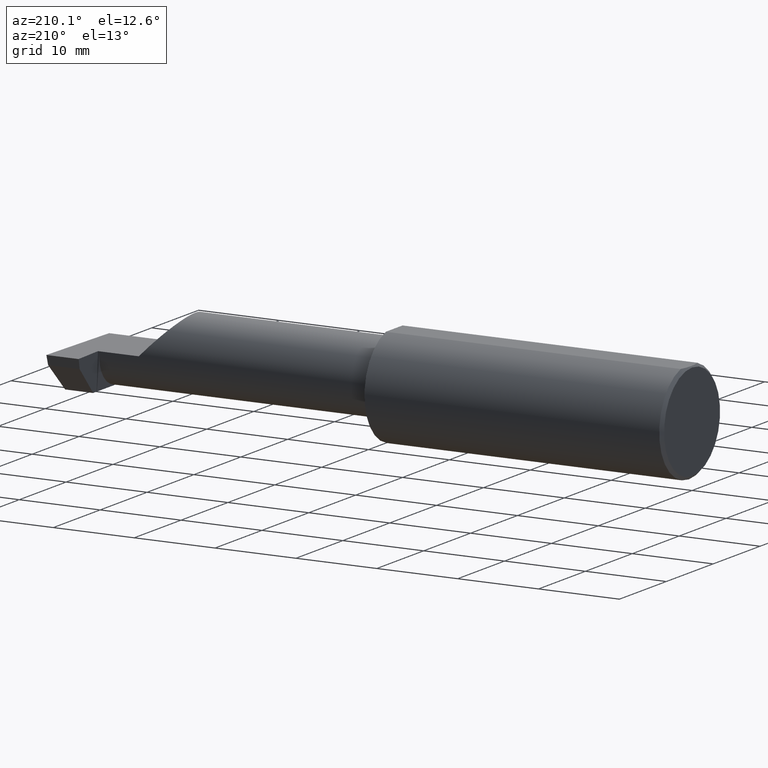
[diagram: clean part render]
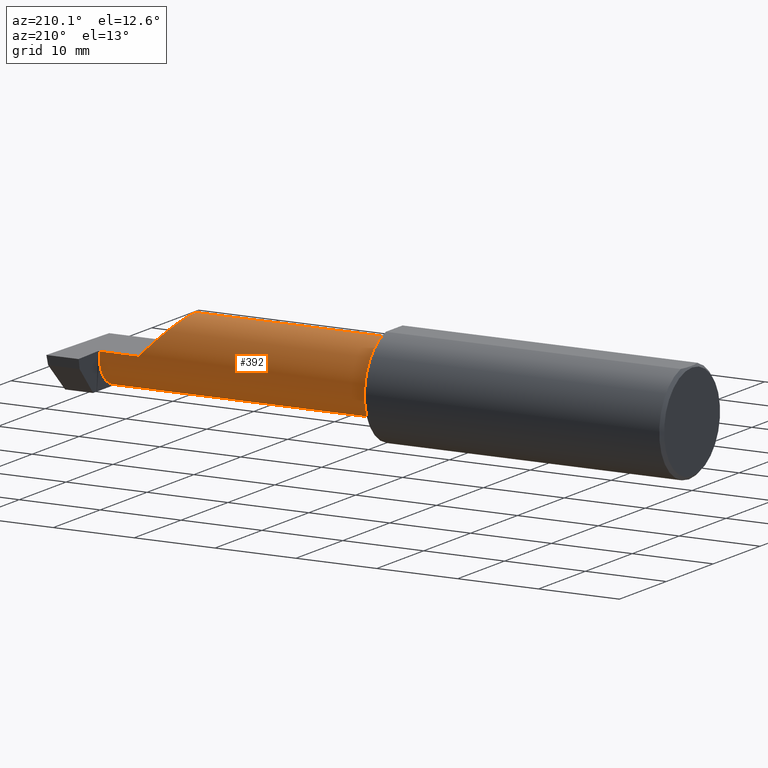
[diagram: same view with one face highlighted and labeled with its STEP entity id]
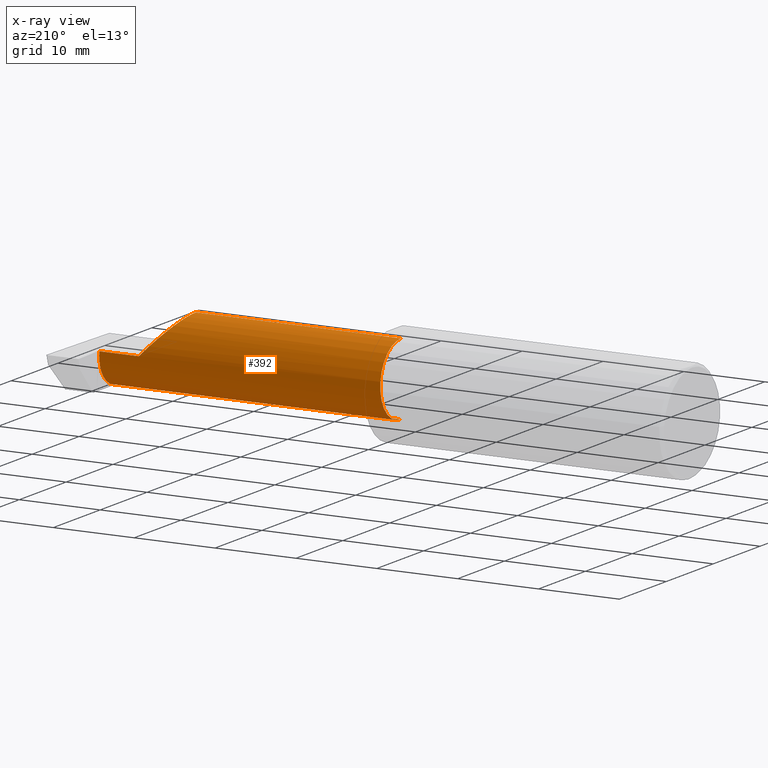
[diagram: x-ray of the same camera — body ghosted, the highlighted face saturated]
A machine part, auxiliary view. The second image highlights one B-rep face of the part: STEP entity #392.
The next image is the same camera in x-ray: the body ghosted, the highlighted face saturated — about 0% of this face is hidden behind the body in this view.
In plain terms, the highlighted cylindrical surface (partial cylindrical patch) has radius 4.445 mm, axis along (-1, -0, -0).
Its self-contained STEP definition (entity closure, byte-faithful):
#12 = CARTESIAN_POINT ( 'NONE',  ( 2.845037492458067696, 0.06794054266098431549, -0.04620338416404774079 ) ) ;
#17 = ORIENTED_EDGE ( 'NONE', *, *, #698, .F. ) ;
#22 = CARTESIAN_POINT ( 'NONE',  ( 2.854036419112083944, -0.01887343476265484349, -0.1749999999999999889 ) ) ;
#32 = ORIENTED_EDGE ( 'NONE', *, *, #170, .T. ) ;
#44 = ORIENTED_EDGE ( 'NONE', *, *, #342, .T. ) ;
#50 = VECTOR ( 'NONE', #495, 39.37007874015748143 ) ;
#57 = DIRECTION ( 'NONE',  ( -1.000000000000000000, -0.000000000000000000, -0.000000000000000000 ) ) ;
#78 = CARTESIAN_POINT ( 'NONE',  ( 2.850564601548837729, 0.04629714416892579537, -0.1252712066320192386 ) ) ;
#89 = DIRECTION ( 'NONE',  ( -1.000000000000000000, -0.000000000000000000, -0.000000000000000000 ) ) ;
#93 = DIRECTION ( 'NONE',  ( -1.000000000000000000, -0.000000000000000000, -0.000000000000000000 ) ) ;
#98 = LINE ( 'NONE', #109, #444 ) ;
#105 = EDGE_CURVE ( 'NONE', #479, #442, #514, .T. ) ;
#109 = CARTESIAN_POINT ( 'NONE',  ( 1.450000000000000178, -0.1008499999999999536, -0.1749999999999999889 ) ) ;
#113 = EDGE_CURVE ( 'NONE', #155, #659, #475, .T. ) ;
#129 = CARTESIAN_POINT ( 'NONE',  ( 2.547487373415292744, 0.07414999999999996594, 0.1025126265847083745 ) ) ;
#140 = ORIENTED_EDGE ( 'NONE', *, *, #270, .F. ) ;
#155 = VERTEX_POINT ( 'NONE', #351 ) ;
#168 = AXIS2_PLACEMENT_3D ( 'NONE', #386, #89, #564 ) ;
#170 = EDGE_CURVE ( 'NONE', #302, #451, #98, .T. ) ;
#185 = EDGE_LOOP ( 'NONE', ( #750, #32, #140, #424, #330, #44, #510, #17 ) ) ;
#186 = FACE_OUTER_BOUND ( 'NONE', #185, .T. ) ;
#187 = CARTESIAN_POINT ( 'NONE',  ( 2.845037492458067696, 0.06794054266098431549, -0.04620338416404774079 ) ) ;
#197 = CARTESIAN_POINT ( 'NONE',  ( 1.474999999999999867, -0.1008499999999999536, -0.1749999999999999889 ) ) ;
#215 = CARTESIAN_POINT ( 'NONE',  ( 2.854029432995154991, -0.1008500000000000091, -0.1749999999999999889 ) ) ;
#221 = AXIS2_PLACEMENT_3D ( 'NONE', #745, #237, #426 ) ;
#228 = VERTEX_POINT ( 'NONE', #650 ) ;
#237 = DIRECTION ( 'NONE',  ( -1.000000000000000000, -0.000000000000000000, -0.000000000000000000 ) ) ;
#244 = CARTESIAN_POINT ( 'NONE',  ( 2.843689495973014125, 0.07413112468343002748, -0.01577237022675139974 ) ) ;
#251 = CARTESIAN_POINT ( 'NONE',  ( 2.844372681961406357, 0.07204909126152571341, -0.03119400421533615256 ) ) ;
#270 = EDGE_CURVE ( 'NONE', #228, #451, #498, .T. ) ;
#271 = VECTOR ( 'NONE', #57, 39.37007874015748143 ) ;
#302 = VERTEX_POINT ( 'NONE', #215 ) ;
#321 = CARTESIAN_POINT ( 'NONE',  ( 2.845037492458067696, 0.06794054266098431549, -0.04620338416404774079 ) ) ;
#329 = CARTESIAN_POINT ( 'NONE',  ( 2.475000000000001421, -0.1008499999999999674, 0.1749999999999999889 ) ) ;
#330 = ORIENTED_EDGE ( 'NONE', *, *, #113, .T. ) ;
#342 = EDGE_CURVE ( 'NONE', #659, #479, #715, .T. ) ;
#351 = CARTESIAN_POINT ( 'NONE',  ( 2.475000000000001421, -0.1008499999999999674, 0.1749999999999999889 ) ) ;
#359 = CARTESIAN_POINT ( 'NONE',  ( 1.474999999999999867, -0.1008499999999999674, 0.000000000000000000 ) ) ;
#378 = CARTESIAN_POINT ( 'NONE',  ( 2.475000000000001421, 0.001662626584708371512, 0.1749999999999999889 ) ) ;
#386 = CARTESIAN_POINT ( 'NONE',  ( 2.843000000000000416, -0.1008499999999999674, 0.000000000000000000 ) ) ;
#391 = LINE ( 'NONE', #738, #271 ) ;
#392 = ADVANCED_FACE ( 'NONE', ( #186 ), #666, .T. ) ;
#424 = ORIENTED_EDGE ( 'NONE', *, *, #641, .F. ) ;
#426 = DIRECTION ( 'NONE',  ( 0.000000000000000000, 0.000000000000000000, 1.000000000000000000 ) ) ;
#442 = VERTEX_POINT ( 'NONE', #610 ) ;
#444 = VECTOR ( 'NONE', #93, 39.37007874015748143 ) ;
#451 = VERTEX_POINT ( 'NONE', #197 ) ;
#475 =( BOUNDED_CURVE ( )  B_SPLINE_CURVE ( 3, ( #329, #378, #129, #688 ),
 .UNSPECIFIED., .F., .F. ) 
 B_SPLINE_CURVE_WITH_KNOTS ( ( 4, 4 ),
 ( 0.000000000000000000, 1.570796326794896558 ),
 .UNSPECIFIED. ) 
 CURVE ( )  GEOMETRIC_REPRESENTATION_ITEM ( )  RATIONAL_B_SPLINE_CURVE ( ( 1.000000000000000000, 0.8047378541243649375, 0.8047378541243649375, 1.000000000000000000 ) ) 
 REPRESENTATION_ITEM ( '' )  );
#479 = VERTEX_POINT ( 'NONE', #685 ) ;
#493 = VERTEX_POINT ( 'NONE', #321 ) ;
#495 = DIRECTION ( 'NONE',  ( 1.000000000000000000, 0.000000000000000000, 0.000000000000000000 ) ) ;
#498 = CIRCLE ( 'NONE', #550, 0.1749999999999999889 ) ;
#507 = CARTESIAN_POINT ( 'NONE',  ( 2.854029432995154991, -0.1008500000000000091, -0.1749999999999999889 ) ) ;
#510 = ORIENTED_EDGE ( 'NONE', *, *, #105, .T. ) ;
#514 = CIRCLE ( 'NONE', #168, 0.1749999999999999889 ) ;
#550 = AXIS2_PLACEMENT_3D ( 'NONE', #359, #601, #701 ) ;
#556 = CARTESIAN_POINT ( 'NONE',  ( 2.650000000000000355, 0.07414999999999997982, 4.286263797015727350E-17 ) ) ;
#564 = DIRECTION ( 'NONE',  ( 0.000000000000000000, 0.000000000000000000, 1.000000000000000000 ) ) ;
#581 = EDGE_CURVE ( 'NONE', #302, #493, #669, .T. ) ;
#601 = DIRECTION ( 'NONE',  ( -1.000000000000000000, -0.000000000000000000, -0.000000000000000000 ) ) ;
#610 = CARTESIAN_POINT ( 'NONE',  ( 2.843000000000000416, 0.07414987299205413884, -0.0002108382441793281274 ) ) ;
#641 = EDGE_CURVE ( 'NONE', #155, #228, #391, .T. ) ;
#650 = CARTESIAN_POINT ( 'NONE',  ( 1.474999999999999867, -0.1008499999999999674, 0.1749999999999999889 ) ) ;
#659 = VERTEX_POINT ( 'NONE', #556 ) ;
#666 = CYLINDRICAL_SURFACE ( 'NONE', #221, 0.1749999999999999889 ) ;
#669 =( BOUNDED_CURVE ( )  B_SPLINE_CURVE ( 3, ( #507, #22, #78, #12 ),
 .UNSPECIFIED., .F., .T. ) 
 B_SPLINE_CURVE_WITH_KNOTS ( ( 4, 4 ),
 ( 3.140373936913444908, 4.443983221546779383 ),
 .UNSPECIFIED. ) 
 CURVE ( )  GEOMETRIC_REPRESENTATION_ITEM ( )  RATIONAL_B_SPLINE_CURVE ( ( 1.000000000000000000, 0.8633269052189369575, 0.8633269052189369575, 1.000000000000000000 ) ) 
 REPRESENTATION_ITEM ( '' )  );
#676 = CARTESIAN_POINT ( 'NONE',  ( 2.843000000000000416, 0.07414987299205413884, -0.0002108382441793281274 ) ) ;
#685 = CARTESIAN_POINT ( 'NONE',  ( 2.843000000000000416, 0.07414999999999999369, 1.898204103061359101E-16 ) ) ;
#688 = CARTESIAN_POINT ( 'NONE',  ( 2.650000000000000355, 0.07414999999999997982, 4.286263797015727350E-17 ) ) ;
#698 = EDGE_CURVE ( 'NONE', #493, #442, #755, .T. ) ;
#701 = DIRECTION ( 'NONE',  ( 0.000000000000000000, 0.000000000000000000, 1.000000000000000000 ) ) ;
#715 = LINE ( 'NONE', #774, #50 ) ;
#738 = CARTESIAN_POINT ( 'NONE',  ( 1.450000000000000178, -0.1008499999999999674, 0.1749999999999999889 ) ) ;
#745 = CARTESIAN_POINT ( 'NONE',  ( 1.450000000000000178, -0.1008499999999999674, 0.000000000000000000 ) ) ;
#750 = ORIENTED_EDGE ( 'NONE', *, *, #581, .F. ) ;
#755 =( BOUNDED_CURVE ( )  B_SPLINE_CURVE ( 3, ( #187, #251, #244, #676 ),
 .UNSPECIFIED., .F., .T. ) 
 B_SPLINE_CURVE_WITH_KNOTS ( ( 4, 4 ),
 ( 4.443983221546780271, 4.709965478757016655 ),
 .UNSPECIFIED. ) 
 CURVE ( )  GEOMETRIC_REPRESENTATION_ITEM ( )  RATIONAL_B_SPLINE_CURVE ( ( 1.000000000000000000, 0.9941131374841131185, 0.9941131374841131185, 1.000000000000000000 ) ) 
 REPRESENTATION_ITEM ( '' )  );
#774 = CARTESIAN_POINT ( 'NONE',  ( 1.450000000000000178, 0.07414999999999997982, 1.898202538678394254E-16 ) ) ;